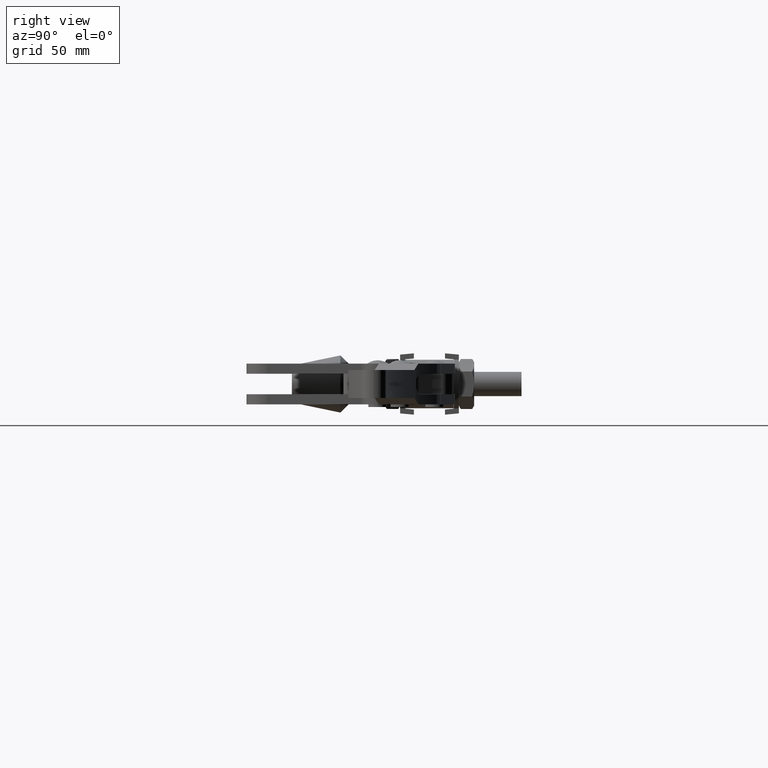
[diagram: clean part render]
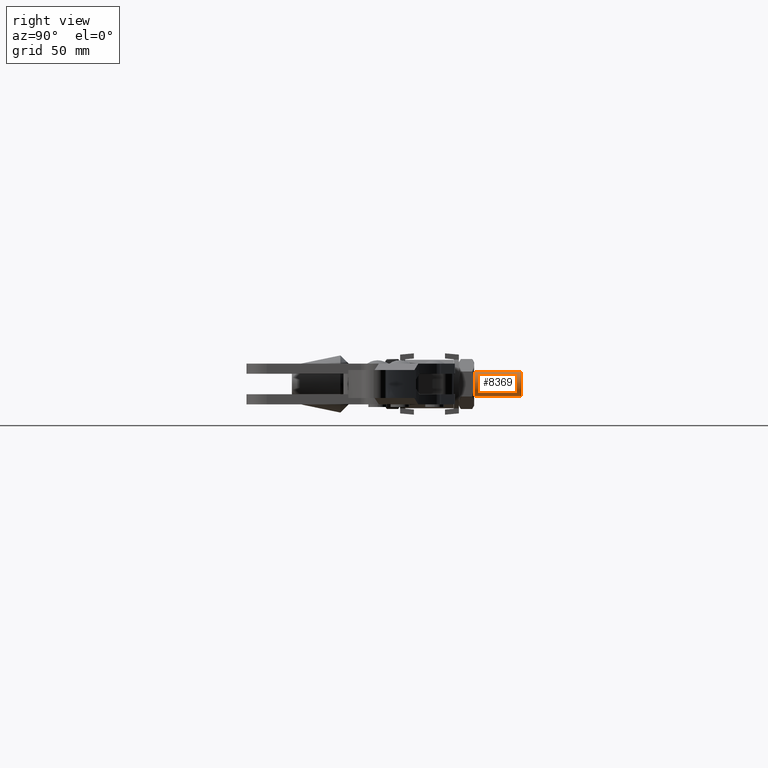
[diagram: same view with one face highlighted and labeled with its STEP entity id]
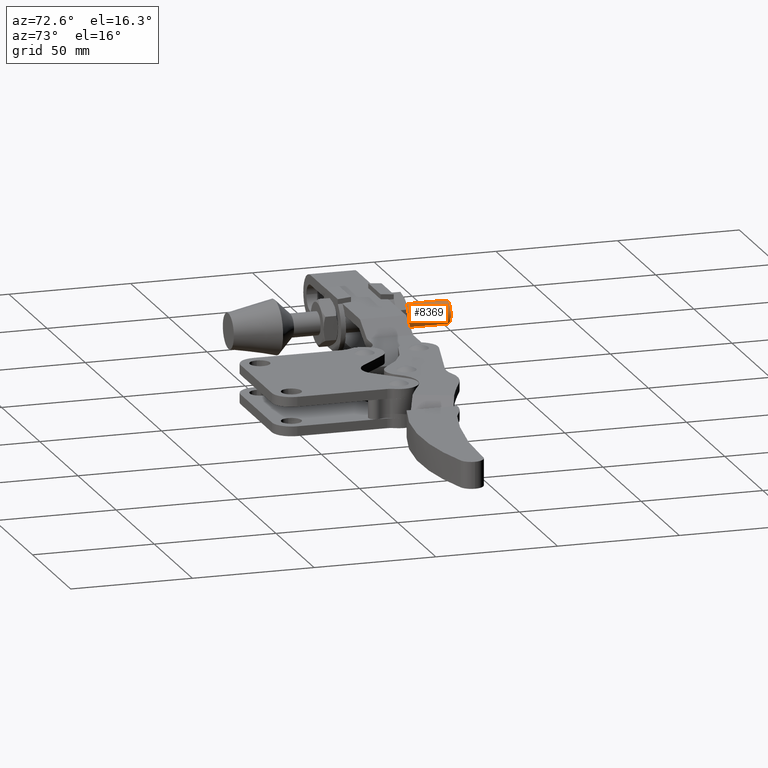
[diagram: same view with one face highlighted and labeled with its STEP entity id]
A machine part, right view. The second image highlights one B-rep face of the part: STEP entity #8369.
A second angle (auxiliary view) of the same face is appended — the face is thin or edge-on in the first view.
In plain terms, the highlighted cylindrical surface (edge-blend (fillet) strip) has radius 4.7625 mm, axis along (-0, -1, -0).
Its self-contained STEP definition (entity closure, byte-faithful):
#116 = CIRCLE ( 'NONE', #8125, 4.762500000000004600 ) ;
#168 = VECTOR ( 'NONE', #3002, 1000.000000000000000 ) ;
#603 = CARTESIAN_POINT ( 'NONE',  ( -121.9723739970631700, 71.43000000000000700, 0.7624999999997556000 ) ) ;
#761 = VERTEX_POINT ( 'NONE', #6857 ) ;
#835 = AXIS2_PLACEMENT_3D ( 'NONE', #6979, #3968, #4775 ) ;
#1775 = ORIENTED_EDGE ( 'NONE', *, *, #3559, .T. ) ;
#2014 = VERTEX_POINT ( 'NONE', #603 ) ;
#2120 = LINE ( 'NONE', #3764, #168 ) ;
#2656 = VERTEX_POINT ( 'NONE', #8321 ) ;
#2727 = ORIENTED_EDGE ( 'NONE', *, *, #3245, .F. ) ;
#3002 = DIRECTION ( 'NONE',  ( -0.0000000000000000000, -1.000000000000000000, -0.0000000000000000000 ) ) ;
#3245 = EDGE_CURVE ( 'NONE', #7371, #761, #8683, .T. ) ;
#3559 = EDGE_CURVE ( 'NONE', #7371, #2014, #8234, .T. ) ;
#3764 = CARTESIAN_POINT ( 'NONE',  ( -121.9723739970631700, -1.084202172485504400E-016, -8.762500000000253300 ) ) ;
#3866 = DIRECTION ( 'NONE',  ( -0.0000000000000000000, -1.000000000000000000, -0.0000000000000000000 ) ) ;
#3968 = DIRECTION ( 'NONE',  ( -0.0000000000000000000, -1.000000000000000000, -0.0000000000000000000 ) ) ;
#4006 = FACE_OUTER_BOUND ( 'NONE', #5157, .T. ) ;
#4184 = DIRECTION ( 'NONE',  ( 0.0000000000000000000, 1.000000000000000000, 0.0000000000000000000 ) ) ;
#4314 = DIRECTION ( 'NONE',  ( 0.0000000000000000000, 1.000000000000000000, 0.0000000000000000000 ) ) ;
#4401 = AXIS2_PLACEMENT_3D ( 'NONE', #8727, #4314, #9494 ) ;
#4775 = DIRECTION ( 'NONE',  ( 0.0000000000000000000, 0.0000000000000000000, -1.000000000000000000 ) ) ;
#5157 = EDGE_LOOP ( 'NONE', ( #2727, #1775, #8944, #6400 ) ) ;
#6104 = CARTESIAN_POINT ( 'NONE',  ( -121.9723739970631700, -1.084202172485504400E-016, 0.7624999999997556000 ) ) ;
#6400 = ORIENTED_EDGE ( 'NONE', *, *, #9068, .F. ) ;
#6510 = CARTESIAN_POINT ( 'NONE',  ( -121.9723739970631700, 90.00000000000000000, 0.7624999999997556000 ) ) ;
#6665 = EDGE_CURVE ( 'NONE', #2014, #2656, #116, .T. ) ;
#6857 = CARTESIAN_POINT ( 'NONE',  ( -121.9723739970631700, 90.00000000000000000, -8.762500000000253300 ) ) ;
#6979 = CARTESIAN_POINT ( 'NONE',  ( -121.9723739970631700, -1.084202172485504400E-016, -4.000000000000248700 ) ) ;
#7371 = VERTEX_POINT ( 'NONE', #6510 ) ;
#7696 = CYLINDRICAL_SURFACE ( 'NONE', #835, 4.762500000000003700 ) ;
#7996 = VECTOR ( 'NONE', #3866, 1000.000000000000000 ) ;
#8125 = AXIS2_PLACEMENT_3D ( 'NONE', #8602, #4184, #9357 ) ;
#8234 = LINE ( 'NONE', #6104, #7996 ) ;
#8321 = CARTESIAN_POINT ( 'NONE',  ( -121.9723739970631700, 71.43000000000000700, -8.762500000000253300 ) ) ;
#8369 = ADVANCED_FACE ( 'NONE', ( #4006 ), #7696, .T. ) ;
#8602 = CARTESIAN_POINT ( 'NONE',  ( -121.9723739970631700, 71.43000000000000700, -4.000000000000248700 ) ) ;
#8683 = CIRCLE ( 'NONE', #4401, 4.762500000000004600 ) ;
#8727 = CARTESIAN_POINT ( 'NONE',  ( -121.9723739970631700, 90.00000000000000000, -4.000000000000248700 ) ) ;
#8944 = ORIENTED_EDGE ( 'NONE', *, *, #6665, .T. ) ;
#9068 = EDGE_CURVE ( 'NONE', #761, #2656, #2120, .T. ) ;
#9357 = DIRECTION ( 'NONE',  ( 0.0000000000000000000, 0.0000000000000000000, 1.000000000000000000 ) ) ;
#9494 = DIRECTION ( 'NONE',  ( 0.0000000000000000000, 0.0000000000000000000, 1.000000000000000000 ) ) ;